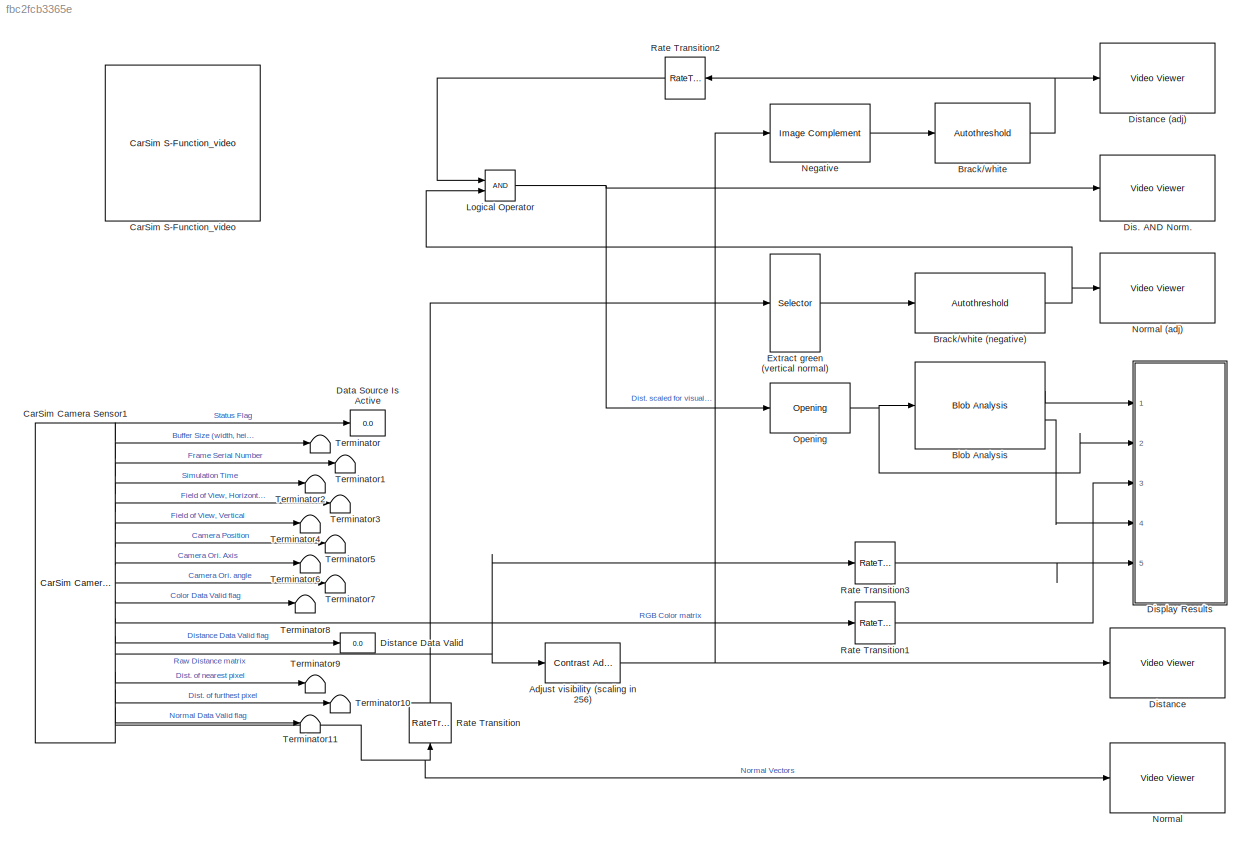
MODEL slx_fbc2fcb3365e
KIND model
BLOCK [Reference] Adjust visibility (scaling in 256)  REF=visionanalysis/Contrast Adjustment
  LockScale = off
  Ports = [1, 1]
  SourceBlock = visionanalysis/Contrast Adjustment
  SourceType = Contrast Adjustment
  binNum = 256
  fracSaturate = [1 1]
  isBinNum = on
  methodInputRange = User-defined range
  methodOutputRange = Full data type range
  overflowMode = off
  prod1FracLength = 16
  prod1Mode = Binary point scaling
  prod1WordLength = 32
  prod2FracLength = 16
  prod2Mode = Binary point scaling
  prod2WordLength = 32
  rangeIn = [0 256]
  rangeOut = [0 255]
  roundingMode = Floor
BLOCK [Reference] Blob Analysis  REF=visionstatistics/Blob Analysis
  LockScale = off
  Ports = [1, 2]
  SourceBlock = visionstatistics/Blob Analysis
  SourceType = Blob Analysis
  Tag = vipblks_row_conv
  accumFracLength = 0
  accumMode = Binary point scaling
  accumWordLength = 32
  angle = off
  area = off
  bBox = on
  centroid = off
  conn = 8
  eccentricity = off
  equivDiameterSq = off
  excludeBorderBlob = off
  extent = off
  fillValues = -1
  firstCoeffFracLength = 14
  firstCoeffMode = Binary point scaling
  firstCoeffWordLength = 16
  isCount = on
  isFill = on
  isLabel = off
  isOutVarDim = off
  majorAxis = off
  maxArea = intmax('uint32')
  maxBlobs = 8
  memoryFracLength = 16
  memoryMode = Same as product output
  memoryWordLength = 32
  minArea = 150
  minorAxis = off
  outDT = double
  outputFracLength = 16
  outputMode = Binary point scaling
  outputWordLength = 32
  overflowMode = off
  perimeter = off
  prodOutputFracLength = 16
  prodOutputMode = Binary point scaling
  prodOutputWordLength = 32
  roundingMode = Floor
  secondCoeffFracLength = 16
  secondCoeffMode = Binary point scaling
  secondCoeffWordLength = 32
  useMaxArea = off
  useMinArea = on
  warnIfNumBlobsExceeded = on
BLOCK [Reference] Brack//white  REF=visionconversions/Autothreshold
  A1FracLength = 30
  A1Mode = Same as Product 1
  A1WordLength = 32
  A2FracLength = 22
  A2Mode = Same as Product 2
  A2WordLength = 32
  A3FracLength = 14
  A3Mode = Same as Product 3
  A3WordLength = 32
  A4FracLength = 4
  A4Mode = Same as Product 4
  A4WordLength = 16
  EMFracLength = 14
  EMMode = Specify word length
  EMWordLength = 16
  LockScale = off
  P1FracLength = 30
  P1Mode = Specify word length
  P1WordLength = 32
  P2FracLength = 22
  P2Mode = Specify word length
  P2WordLength = 32
  P3FracLength = 14
  P3Mode = Specify word length
  P3WordLength = 32
  P4FracLength = 15
  P4Mode = Binary point scaling
  P4WordLength = 32
  Ports = [1, 1]
  Q1FracLength = 16
  Q1Mode = Specify word length
  Q1WordLength = 32
  SourceBlock = visionconversions/Autothreshold
  SourceType = Autothreshold
  effMetricOut = off
  operator = >
  outOfRngOpt = Warn and saturate
  overflowMode = off
  roundingMode = Floor
  scaleFactor = 1
  scaleThreshold = off
  threshOut = off
  umax = 255
  umin = 0
  userDefinedRange = off
BLOCK [Reference] Brack//white (negative)  REF=visionconversions/Autothreshold
  A1FracLength = 30
  A1Mode = Same as Product 1
  A1WordLength = 32
  A2FracLength = 22
  A2Mode = Same as Product 2
  A2WordLength = 32
  A3FracLength = 14
  A3Mode = Same as Product 3
  A3WordLength = 32
  A4FracLength = 4
  A4Mode = Same as Product 4
  A4WordLength = 16
  EMFracLength = 14
  EMMode = Specify word length
  EMWordLength = 16
  LockScale = off
  P1FracLength = 30
  P1Mode = Specify word length
  P1WordLength = 32
  P2FracLength = 22
  P2Mode = Specify word length
  P2WordLength = 32
  P3FracLength = 14
  P3Mode = Specify word length
  P3WordLength = 32
  P4FracLength = 15
  P4Mode = Binary point scaling
  P4WordLength = 32
  Ports = [1, 1]
  Q1FracLength = 16
  Q1Mode = Specify word length
  Q1WordLength = 32
  SourceBlock = visionconversions/Autothreshold
  SourceType = Autothreshold
  effMetricOut = off
  operator = <=
  outOfRngOpt = Warn and saturate
  overflowMode = off
  roundingMode = Floor
  scaleFactor = 1
  scaleThreshold = off
  threshOut = off
  umax = 255
  umin = 0
  userDefinedRange = off
BLOCK [Reference] CarSim Camera Sensor1  REF=Solver_SF/CarSim Camera Sensor
  Ports = [0, 17]
  Priority = 1
  SourceBlock = Solver_SF/CarSim Camera Sensor
BLOCK [Reference] CarSim S-Function_video  REF=Solver_SF/CarSim S-Function_video
  AttributesFormatString = Vehicle Code: %<VehicleCode>
  Ports = []
  Priority = 1
  SIMFILE = simfile.sim
  SourceBlock = Solver_SF/CarSim S-Function_video
  SourceType = Vehicle math model library
  VehicleCode = i_i
BLOCK [Display] Data Source Is Active
  Decimation = 1
  Ports = [1]
BLOCK [Reference] Dis. AND Norm.  REF=visionsinks/Video Viewer
  AxisZoom = on
  DefaultConfigurationName = vipscopes.VideoViewerScopeCfg
  FigPos = [805 1146 320 250]
  OpenAtMdlStart = on
  Ports = [1]
  SourceBlock = visionsinks/Video Viewer
  SourceType = Video Viewer
  UserDataPersistent = on
  colormapValue = gray(256)
  imagePorts = One multidimensional signal
  inputType = Obsolete7b
  maxInputVal = 255
  minInputVal = 0
  specRange = off
  trueSizedOnce = off
  useColorMap = off
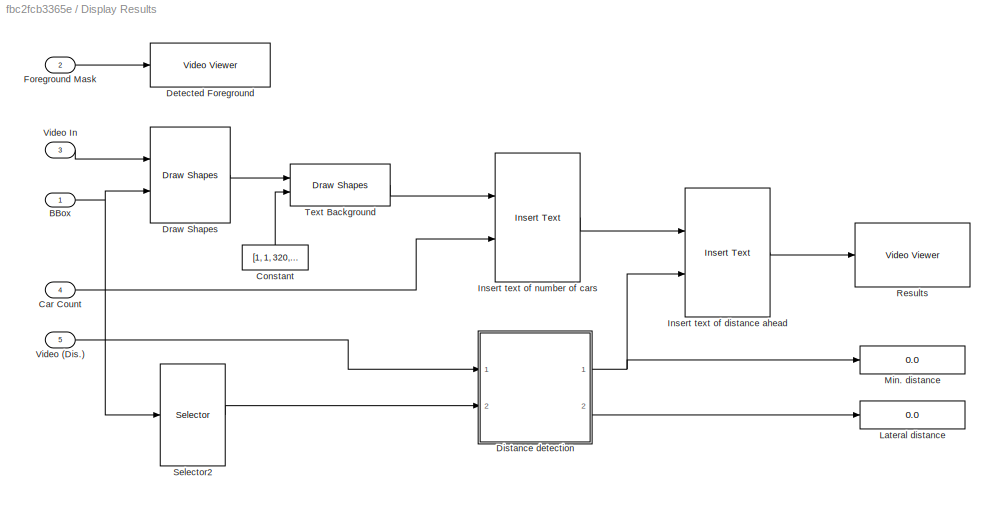
BLOCK [SubSystem] Display Results
  Ports = [5]
  RTWMemSecDataConstants = Default
  RTWMemSecDataInternal = Default
  RTWMemSecDataParameters = Default
  RTWMemSecFuncExecute = Default
  RTWMemSecFuncInitTerm = Default
  RequestExecContextInheritance = off
BLOCK [Inport] Display Results/BBox
  IconDisplay = Port number
BLOCK [Inport] Display Results/Car Count
  IconDisplay = Port number
  Port = 4
BLOCK [Constant] Display Results/Constant
  OutDataTypeStr = uint32
  Value = [1, 1, 320, 15]
BLOCK [Reference] Display Results/Detected Foreground  REF=visionsinks/Video Viewer
  AxisZoom = on
  DefaultConfigurationName = vipscopes.VideoViewerScopeCfg
  FigPos = [467 1146 337 249]
  OpenAtMdlStart = on
  Ports = [1]
  SourceBlock = visionsinks/Video Viewer
  SourceType = Video Viewer
  UserDataPersistent = on
  colormapValue = gray(256)
  imagePorts = One multidimensional signal
  inputType = Obsolete7b
  maxInputVal = 255
  minInputVal = 0
  specRange = off
  trueSizedOnce = on
  useColorMap = off
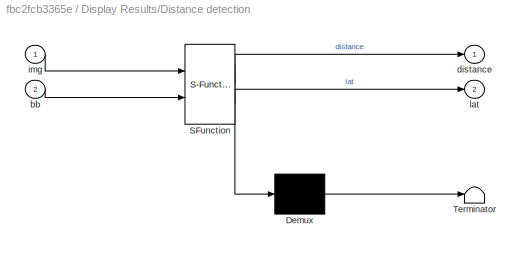
BLOCK [SubSystem] Display Results/Distance detection
  ErrorFcn = Stateflow.Translate.translate
  PermitHierarchicalResolution = ExplicitOnly
  Ports = [2, 2]
  RequestExecContextInheritance = off
  SFBlockType = MATLAB Function
  TreatAsAtomicUnit = on
BLOCK [Demux] Display Results/Distance detection/ Demux 
  Outputs = 1
  Ports = [1, 1]
BLOCK [S-Function] Display Results/Distance detection/ SFunction 
  EnableBusSupport = on
  FunctionName = sf_sfun
  PortCounts = [2 3]
  Ports = [2, 3]
  Tag = Stateflow S-Function Camera_Sensor_CS2017 1
BLOCK [Terminator] Display Results/Distance detection/ Terminator 
BLOCK [Inport] Display Results/Distance detection/bb
  IconDisplay = Port number
  Port = 2
BLOCK [Outport] Display Results/Distance detection/distance
  IconDisplay = Port number
BLOCK [Inport] Display Results/Distance detection/img
  IconDisplay = Port number
BLOCK [Outport] Display Results/Distance detection/lat
  IconDisplay = Port number
  Port = 2
BLOCK [Reference] Display Results/Draw Shapes  REF=visiontextngfix/Draw Shapes
  LockScale = off
  Ports = [2, 1]
  SourceBlock = visiontextngfix/Draw Shapes
  SourceType = Draw Shapes
  accumFracLength = 14
  accumMode = Same as product output
  accumWordLength = 32
  antialiasing = off
  color = [0 256 0]
  display = User-specified value
  fill = off
  fillClrSource = Specify via dialog
  imagePorts = One multidimensional signal
  inType = Obsolete
  intensity = 200
  lineWidth = 1
  memoryFracLength = 15
  memoryMode = Specify word length
  memoryWordLength = 16
  opacity = 0.6
  overflowMode = off
  prodOutputFracLength = 14
  prodOutputMode = Binary point scaling
  prodOutputWordLength = 32
  roundingMode = Floor
  shape = Rectangles
  viewport = Entire image
BLOCK [Inport] Display Results/Foreground Mask
  IconDisplay = Port number
  Port = 2
BLOCK [Reference] Display Results/Insert text of distance ahead  REF=visiontextngfix/Insert Text
  Ports = [2, 1]
  SourceBlock = visiontextngfix/Insert Text
  SourceType = Insert Text
  antiAliased = on
  blockFontSize = 11
  dummyVar1 = 0
  dummyVar2 = 0
  dummyVar3 = 0
  dummyVar4 = 0
  fontFace = LucidaTypewriterRegular
  getTextColorFrom = Specify via dialog
  getTextIntensityFrom = Specify via dialog
  getTextLocFrom = Specify via dialog
  getTextOpacityFrom = Specify via dialog
  imagePorts = One multidimensional signal
  inputType = Obsolete
  isInputTransposed = off
  textColor = [256 256 256]
  textIntensity = 1
  textLoc = [160 1]
  textOpacity = 1.0
  theText = 'Distance Ahead: %.1f m'
BLOCK [Reference] Display Results/Insert text of number of cars  REF=visiontextngfix/Insert Text
  Ports = [2, 1]
  SourceBlock = visiontextngfix/Insert Text
  SourceType = Insert Text
  antiAliased = on
  blockFontSize = 12
  dummyVar1 = 0
  dummyVar2 = 0
  dummyVar3 = 0
  dummyVar4 = 0
  fontFace = LucidaTypewriterRegular
  getTextColorFrom = Specify via dialog
  getTextIntensityFrom = Specify via dialog
  getTextLocFrom = Specify via dialog
  getTextOpacityFrom = Specify via dialog
  imagePorts = One multidimensional signal
  inputType = Obsolete
  isInputTransposed = off
  textColor = [256 256 256]
  textIntensity = 1
  textLoc = [1 1]
  textOpacity = 1.0
  theText = 'Number of Cars: %d'
BLOCK [Display] Display Results/Lateral distance
  Decimation = 1
  Format = long
  Ports = [1]
BLOCK [Display] Display Results/Min. distance
  Decimation = 1
  Format = long
  Ports = [1]
BLOCK [Reference] Display Results/Results  REF=visionsinks/Video Viewer
  AxisZoom = on
  DefaultConfigurationName = vipscopes.VideoViewerScopeCfg
  FigPos = [1 484 612 401]
  OpenAtMdlStart = on
  Ports = [1]
  SourceBlock = visionsinks/Video Viewer
  SourceType = Video Viewer
  UserDataPersistent = on
  colormapValue = gray(256)
  imagePorts = One multidimensional signal
  inputType = Obsolete7b
  maxInputVal = 255
  minInputVal = 0
  specRange = off
  trueSizedOnce = on
  useColorMap = off
BLOCK [Selector] Display Results/Selector2
  IndexOptions = Select all,Select all
  Indices = 1,1
  InputPortWidth = 3
  NumberOfDimensions = 2
  OutputSizes = 99,1
  Ports = [1, 1]
BLOCK [Reference] Display Results/Text Background  REF=visiontextngfix/Draw Shapes
  LockScale = off
  Ports = [2, 1]
  SourceBlock = visiontextngfix/Draw Shapes
  SourceType = Draw Shapes
  accumFracLength = 14
  accumMode = Same as product output
  accumWordLength = 32
  antialiasing = off
  color = [0 0 0]
  display = User-specified value
  fill = on
  fillClrSource = Specify via dialog
  imagePorts = One multidimensional signal
  inType = Obsolete
  intensity = 200
  lineWidth = 1
  memoryFracLength = 14
  memoryMode = Specify word length
  memoryWordLength = 16
  opacity = 1
  overflowMode = off
  prodOutputFracLength = 14
  prodOutputMode = Binary point scaling
  prodOutputWordLength = 32
  roundingMode = Floor
  shape = Rectangles
  viewport = Entire image
BLOCK [Inport] Display Results/Video (Dis.)
  IconDisplay = Port number
  Port = 5
BLOCK [Inport] Display Results/Video In
  IconDisplay = Port number
  Port = 3
BLOCK [Reference] Distance  REF=visionsinks/Video Viewer
  AxisZoom = on
  DefaultConfigurationName = vipscopes.VideoViewerScopeCfg
  FigPos = [1451 352 320 259]
  OpenAtMdlStart = on
  Ports = [1]
  SourceBlock = visionsinks/Video Viewer
  SourceType = Video Viewer
  UserDataPersistent = on
  colormapValue = gray(256)
  imagePorts = One multidimensional signal
  inputType = Obsolete7b
  maxInputVal = 255
  minInputVal = 0
  specRange = off
  trueSizedOnce = off
  useColorMap = off
BLOCK [Reference] Distance (adj)  REF=visionsinks/Video Viewer
  AxisZoom = on
  DefaultConfigurationName = vipscopes.VideoViewerScopeCfg
  FigPos = [1451 701 322 264]
  OpenAtMdlStart = on
  Ports = [1]
  SourceBlock = visionsinks/Video Viewer
  SourceType = Video Viewer
  UserDataPersistent = on
  colormapValue = gray(256)
  imagePorts = One multidimensional signal
  inputType = Obsolete7b
  maxInputVal = 255
  minInputVal = 0
  specRange = off
  trueSizedOnce = off
  useColorMap = off
BLOCK [Display] Distance Data Valid
  Decimation = 1
  Ports = [1]
BLOCK [Selector] Extract green (vertical normal)
  IndexOptions = Select all,Select all,Index vector (dialog)
  Indices = (51:150),(51:270),2
  InputPortWidth = 3
  NumberOfDimensions = 3
  OutputSizes = ,1,1
  Ports = [1, 1]
BLOCK [Logic] Logical Operator
  AllPortsSameDT = off
  OutDataTypeStr = boolean
  Ports = [2, 1]
BLOCK [Reference] Negative  REF=visionconversions/Image Complement
  Ports = [1, 1]
  SourceBlock = visionconversions/Image Complement
  SourceType = Image Complement
BLOCK [Reference] Normal  REF=visionsinks/Video Viewer
  AxisZoom = on
  DefaultConfigurationName = vipscopes.VideoViewerScopeCfg
  FigPos = [1449 1034 320 248]
  OpenAtMdlStart = on
  Ports = [1]
  SourceBlock = visionsinks/Video Viewer
  SourceType = Video Viewer
  UserDataPersistent = on
  colormapValue = gray(256)
  imagePorts = One multidimensional signal
  inputType = Obsolete7b
  maxInputVal = 255
  minInputVal = 0
  specRange = off
  trueSizedOnce = off
  useColorMap = off
BLOCK [Reference] Normal (adj)  REF=visionsinks/Video Viewer
  AxisZoom = on
  DefaultConfigurationName = vipscopes.VideoViewerScopeCfg
  FigPos = [1126 1146 320 250]
  OpenAtMdlStart = on
  Ports = [1]
  SourceBlock = visionsinks/Video Viewer
  SourceType = Video Viewer
  UserDataPersistent = on
  colormapValue = gray(256)
  imagePorts = One multidimensional signal
  inputType = Obsolete7b
  maxInputVal = 255
  minInputVal = 0
  specRange = off
  trueSizedOnce = off
  useColorMap = off
BLOCK [Reference] Opening  REF=visionmorphops/Opening
  Ports = [1, 1]
  SourceBlock = visionmorphops/Opening
  SourceType = Opening
  nhoodsrc = Specify via dialog
  strel = strel('square', 4)
BLOCK [RateTransition] Rate Transition
  OutPortSampleTime = 0.033
BLOCK [RateTransition] Rate Transition1
  OutPortSampleTime = 0.033
BLOCK [RateTransition] Rate Transition2
  OutPortSampleTime = 0.033
BLOCK [RateTransition] Rate Transition3
  OutPortSampleTime = 0.033
BLOCK [Terminator] Terminator
BLOCK [Terminator] Terminator1
BLOCK [Terminator] Terminator10
BLOCK [Terminator] Terminator11
BLOCK [Terminator] Terminator2
BLOCK [Terminator] Terminator3
BLOCK [Terminator] Terminator4
BLOCK [Terminator] Terminator5
BLOCK [Terminator] Terminator6
BLOCK [Terminator] Terminator7
BLOCK [Terminator] Terminator8
BLOCK [Terminator] Terminator9
NET Adjust visibility (scaling in 256):1 -> Distance:1, Negative:1
LINE Blob Analysis:1 -> Display Results:1
LINE Blob Analysis:2 -> Display Results:4
NET Brack//white (negative):1 -> Logical Operator:2, Normal (adj):1
NET Brack//white:1 -> Distance (adj):1, Rate Transition2:1
LINE CarSim Camera Sensor1:1 -> Data Source Is Active:1
LINE CarSim Camera Sensor1:10 -> Terminator8:1
LINE CarSim Camera Sensor1:11 -> Rate Transition1:1
LINE CarSim Camera Sensor1:12 -> Distance Data Valid:1
NET CarSim Camera Sensor1:13 -> Adjust visibility (scaling in 256):1, Rate Transition3:1
LINE CarSim Camera Sensor1:14 -> Terminator9:1
LINE CarSim Camera Sensor1:15 -> Terminator10:1
LINE CarSim Camera Sensor1:16 -> Terminator11:1
NET CarSim Camera Sensor1:17 -> Normal:1, Rate Transition:1
LINE CarSim Camera Sensor1:2 -> Terminator:1
LINE CarSim Camera Sensor1:3 -> Terminator1:1
LINE CarSim Camera Sensor1:4 -> Terminator2:1
LINE CarSim Camera Sensor1:5 -> Terminator3:1
LINE CarSim Camera Sensor1:6 -> Terminator4:1
LINE CarSim Camera Sensor1:7 -> Terminator5:1
LINE CarSim Camera Sensor1:8 -> Terminator6:1
LINE CarSim Camera Sensor1:9 -> Terminator7:1
NET Display Results/BBox:1 -> Display Results/Draw Shapes:2, Display Results/Selector2:1
LINE Display Results/Car Count:1 -> Display Results/Insert text of number of cars:2
LINE Display Results/Constant:1 -> Display Results/Text Background:2
NET Display Results/Distance detection:1 -> Display Results/Insert text of distance ahead:2, Display Results/Min. distance:1
LINE Display Results/Distance detection:2 -> Display Results/Lateral distance:1
LINE Display Results/Draw Shapes:1 -> Display Results/Text Background:1
LINE Display Results/Foreground Mask:1 -> Display Results/Detected Foreground:1
LINE Display Results/Insert text of distance ahead:1 -> Display Results/Results:1
LINE Display Results/Insert text of number of cars:1 -> Display Results/Insert text of distance ahead:1
LINE Display Results/Selector2:1 -> Display Results/Distance detection:2
LINE Display Results/Text Background:1 -> Display Results/Insert text of number of cars:1
LINE Display Results/Video (Dis.):1 -> Display Results/Distance detection:1
LINE Display Results/Video In:1 -> Display Results/Draw Shapes:1
LINE Extract green (vertical normal):1 -> Brack//white (negative):1
NET Logical Operator:1 -> Dis. AND Norm.:1, Opening:1
LINE Negative:1 -> Brack//white:1
NET Opening:1 -> Blob Analysis:1, Display Results:2
LINE Rate Transition1:1 -> Display Results:3
LINE Rate Transition2:1 -> Logical Operator:1
LINE Rate Transition3:1 -> Display Results:5
LINE Rate Transition:1 -> Extract green (vertical normal):1
note: NET lines group one-source signal fan-out (src -> all destinations, sorted); 1:1 wires keep LINE
CHART Display Results/Distance detection states=1 transitions=1
  STATE_LABEL 'eML_blk_kernel()'
  STATE_LABEL 'SCRIPT:\nfunction [distance,lat] = fcn(img,bb)\n\nangle_to_vehicle = 90.0;\nlat_on_pixel = 0.0;\n\nvalue_1_mem = 100.0;\nvalue_2_mem = 100.0;\n\nfor i = 1:8\n    if bb(i,1) < 0 \n        value_1 = 100.0;\n        value_2 = 100.0;\n    else\n        y = min(bb(i,2)+bb(i,4),200);\n        x = min(bb(i,1)+bb(i,3),320);\n        lat_on_pixel = double(bb(i,1)+bb(i,3)/2-160);\n        angle_to_vehicle = double(lat_on_pi...<+319ch>'
